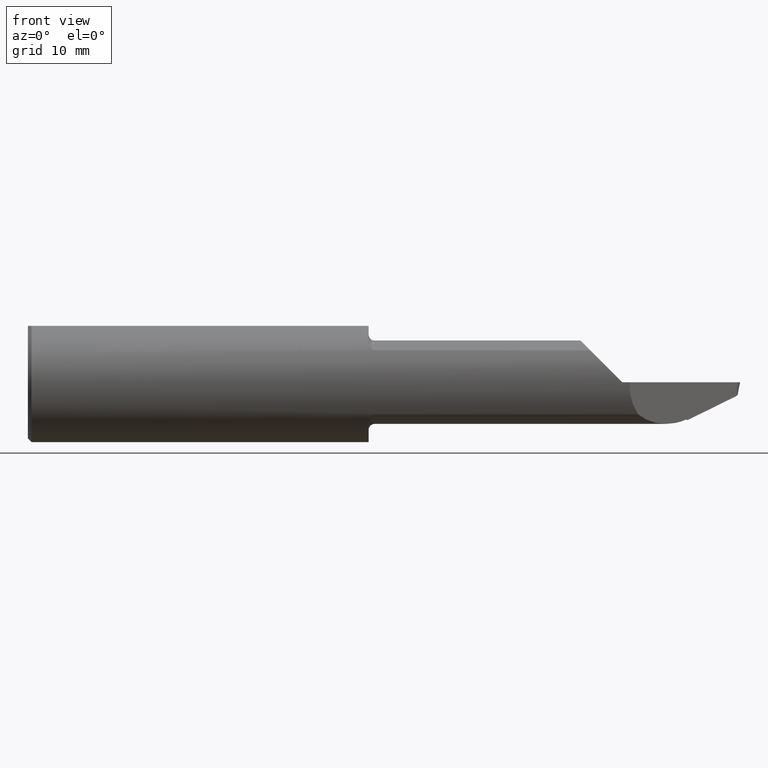
[diagram: clean part render]
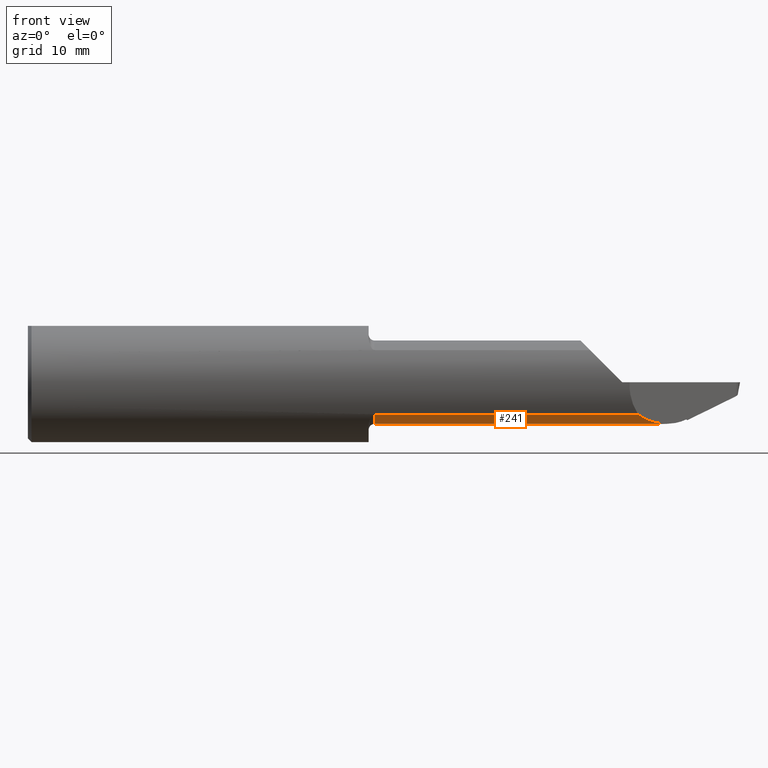
[diagram: same view with one face highlighted and labeled with its STEP entity id]
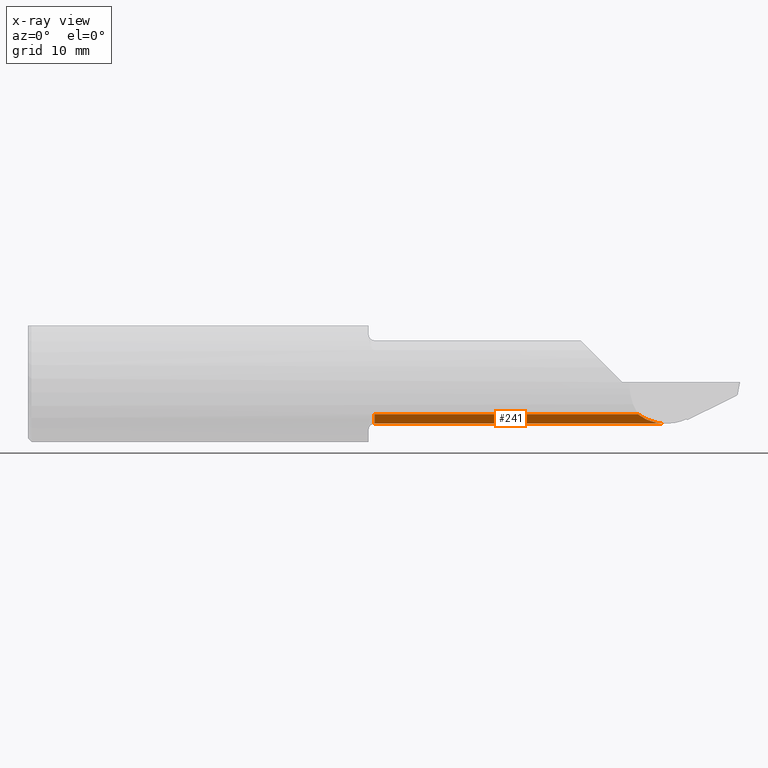
[diagram: x-ray of the same camera — body ghosted, the highlighted face saturated]
A machine part, front view. The second image highlights one B-rep face of the part: STEP entity #241.
The next image is the same camera in x-ray: the body ghosted, the highlighted face saturated — about 0% of this face is hidden behind the body in this view.
In plain terms, the highlighted cylindrical surface (partial cylindrical patch) has radius 4.4196 mm, axis along (-1, -0, -0).
Its self-contained STEP definition (entity closure, byte-faithful):
#6 = CIRCLE ( 'NONE', #452, 0.1740000000000005431 ) ;
#12 = CARTESIAN_POINT ( 'NONE',  ( 2.096954927754681730, -0.2109115923885824251, -0.1339452227446445709 ) ) ;
#30 = DIRECTION ( 'NONE',  ( -1.000000000000000000, -0.000000000000000000, -0.000000000000000000 ) ) ;
#36 = CARTESIAN_POINT ( 'NONE',  ( 1.446699999999999875, -0.09985000000000000819, 0.000000000000000000 ) ) ;
#49 = LINE ( 'NONE', #364, #88 ) ;
#88 = VECTOR ( 'NONE', #430, 39.37007874015748143 ) ;
#100 = CARTESIAN_POINT ( 'NONE',  ( 2.578040489233801136, -0.1793692571805418912, -0.1600987644990817527 ) ) ;
#108 = VERTEX_POINT ( 'NONE', #653 ) ;
#144 = CARTESIAN_POINT ( 'NONE',  ( 1.446699999999999875, -0.2109115923885826471, -0.1339452227446448762 ) ) ;
#184 = DIRECTION ( 'NONE',  ( -1.000000000000000000, -0.000000000000000000, -0.000000000000000000 ) ) ;
#222 = CARTESIAN_POINT ( 'NONE',  ( 2.662602659211939837, -0.09984999999999999432, -0.1740000000000002378 ) ) ;
#240 = DIRECTION ( 'NONE',  ( 0.000000000000000000, 0.000000000000000000, 1.000000000000000000 ) ) ;
#241 = ADVANCED_FACE ( 'NONE', ( #679 ), #556, .T. ) ;
#256 = EDGE_CURVE ( 'NONE', #349, #108, #49, .T. ) ;
#304 = ORIENTED_EDGE ( 'NONE', *, *, #256, .F. ) ;
#349 = VERTEX_POINT ( 'NONE', #669 ) ;
#364 = CARTESIAN_POINT ( 'NONE',  ( 1.421699999999999964, -0.09984999999999999432, -0.1740000000000002378 ) ) ;
#374 = VECTOR ( 'NONE', #769, 39.37007874015748143 ) ;
#420 = CARTESIAN_POINT ( 'NONE',  ( 2.618662664960788700, -0.1408247075240016966, -0.1740000000000003211 ) ) ;
#421 = CARTESIAN_POINT ( 'NONE',  ( 1.421699999999999964, -0.09985000000000000819, 0.000000000000000000 ) ) ;
#430 = DIRECTION ( 'NONE',  ( -1.000000000000000000, -0.000000000000000000, -0.000000000000000000 ) ) ;
#452 = AXIS2_PLACEMENT_3D ( 'NONE', #36, #30, #644 ) ;
#454 = ORIENTED_EDGE ( 'NONE', *, *, #460, .T. ) ;
#460 = EDGE_CURVE ( 'NONE', #547, #809, #511, .T. ) ;
#490 =( BOUNDED_CURVE ( )  B_SPLINE_CURVE ( 3, ( #528, #100, #420, #222 ),
 .UNSPECIFIED., .F., .F. ) 
 B_SPLINE_CURVE_WITH_KNOTS ( ( 4, 4 ),
 ( 0.8308160677390191706, 1.523084436873744174 ),
 .UNSPECIFIED. ) 
 CURVE ( )  GEOMETRIC_REPRESENTATION_ITEM ( )  RATIONAL_B_SPLINE_CURVE ( ( 1.000000000000000000, 0.9604608466326350902, 0.9604608466326350902, 1.000000000000000000 ) ) 
 REPRESENTATION_ITEM ( '' )  );
#511 = LINE ( 'NONE', #12, #374 ) ;
#528 = CARTESIAN_POINT ( 'NONE',  ( 2.545554631339533191, -0.2109115923885824251, -0.1339452227446445709 ) ) ;
#547 = VERTEX_POINT ( 'NONE', #781 ) ;
#556 = CYLINDRICAL_SURFACE ( 'NONE', #688, 0.1740000000000002378 ) ;
#577 = EDGE_CURVE ( 'NONE', #108, #809, #6, .T. ) ;
#603 = EDGE_LOOP ( 'NONE', ( #304, #626, #454, #717 ) ) ;
#626 = ORIENTED_EDGE ( 'NONE', *, *, #630, .F. ) ;
#630 = EDGE_CURVE ( 'NONE', #547, #349, #490, .T. ) ;
#644 = DIRECTION ( 'NONE',  ( 0.000000000000000000, 0.000000000000000000, 1.000000000000000000 ) ) ;
#653 = CARTESIAN_POINT ( 'NONE',  ( 1.446699999999999875, -0.09984999999999999432, -0.1740000000000005431 ) ) ;
#669 = CARTESIAN_POINT ( 'NONE',  ( 2.662602659211939837, -0.09984999999999999432, -0.1740000000000002378 ) ) ;
#679 = FACE_OUTER_BOUND ( 'NONE', #603, .T. ) ;
#688 = AXIS2_PLACEMENT_3D ( 'NONE', #421, #184, #240 ) ;
#717 = ORIENTED_EDGE ( 'NONE', *, *, #577, .F. ) ;
#769 = DIRECTION ( 'NONE',  ( -1.000000000000000000, -0.000000000000000000, -0.000000000000000000 ) ) ;
#781 = CARTESIAN_POINT ( 'NONE',  ( 2.545554631339533191, -0.2109115923885824251, -0.1339452227446445709 ) ) ;
#809 = VERTEX_POINT ( 'NONE', #144 ) ;